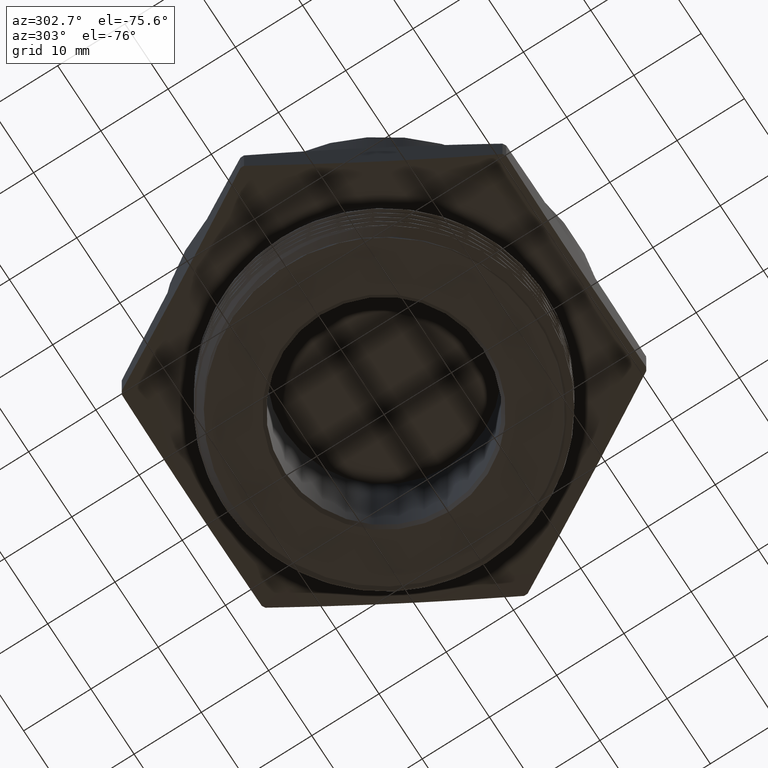
[diagram: clean part render]
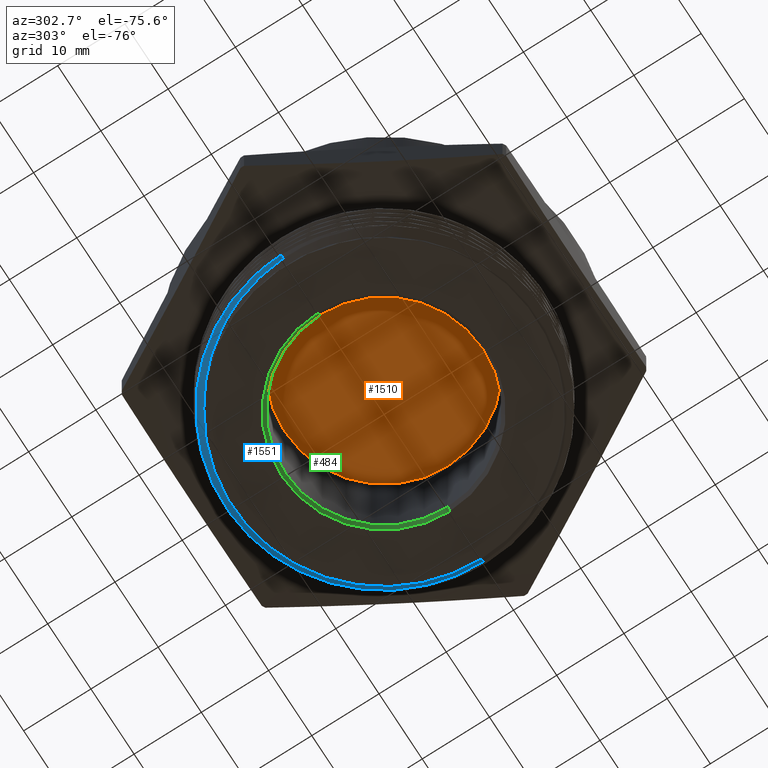
[diagram: same view with three faces highlighted in distinct colors, each labeled with its STEP entity id]
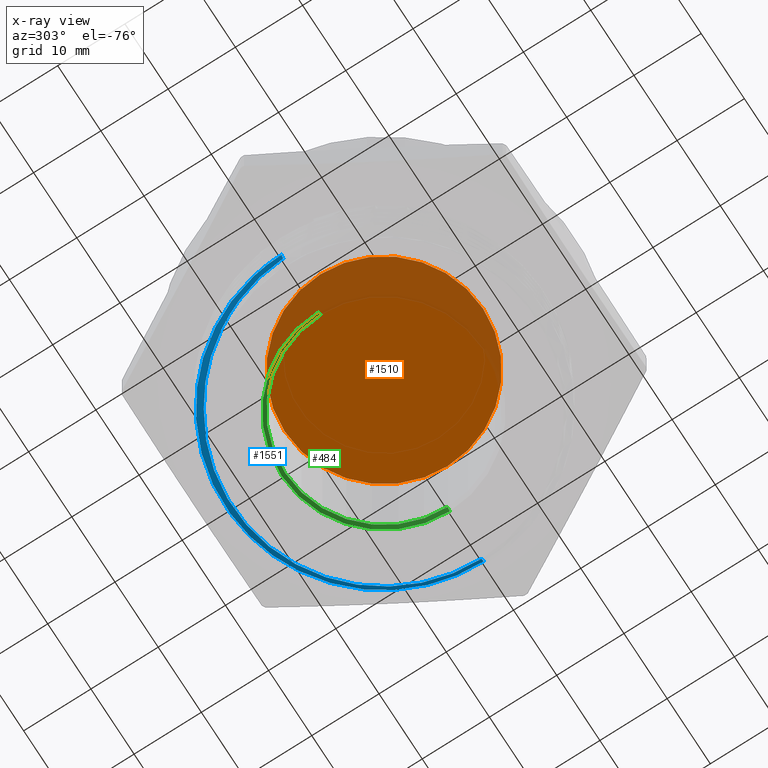
[diagram: x-ray of the same camera — body ghosted, the three highlighted faces saturated]
A machine part, auxiliary view with three faces highlighted in distinct colors.
The next image is the same camera in x-ray (body ghosted, the three faces saturated) — at least one of them is partly hidden behind the body in this view.
Their STEP definitions:

[orange] entity #1510 — the highlighted planar face has unit normal (0, 0, -1).
#23 = VERTEX_POINT ( 'NONE', #2793 ) ;
#71 = VERTEX_POINT ( 'NONE', #2736 ) ;
#80 = FACE_OUTER_BOUND ( 'NONE', #187, .T. ) ;
#187 = EDGE_LOOP ( 'NONE', ( #439, #368 ) ) ;
#215 = CIRCLE ( 'NONE', #707, 0.5800000000000002900 ) ;
#231 = CIRCLE ( 'NONE', #709, 0.5800000000000002900 ) ;
#368 = ORIENTED_EDGE ( 'NONE', *, *, #619, .T. ) ;
#439 = ORIENTED_EDGE ( 'NONE', *, *, #622, .T. ) ;
#619 = EDGE_CURVE ( 'NONE', #71, #23, #215, .T. ) ;
#622 = EDGE_CURVE ( 'NONE', #23, #71, #231, .T. ) ;
#707 = AXIS2_PLACEMENT_3D ( 'NONE', #2044, #2045, #2046 ) ;
#709 = AXIS2_PLACEMENT_3D ( 'NONE', #2052, #2053, #2054 ) ;
#720 = AXIS2_PLACEMENT_3D ( 'NONE', #1408, #1412, #1413 ) ;
#1408 = CARTESIAN_POINT ( 'NONE',  ( 0.0000000000000000000, 0.0000000000000000000, 0.2460000000000000200 ) ) ;
#1410 = PLANE ( 'NONE',  #720 ) ;
#1412 = DIRECTION ( 'NONE',  ( 0.0000000000000000000, 0.0000000000000000000, -1.000000000000000000 ) ) ;
#1413 = DIRECTION ( 'NONE',  ( -1.000000000000000000, 0.0000000000000000000, -0.0000000000000000000 ) ) ;
#1510 = ADVANCED_FACE ( 'NONE', ( #80 ), #1410, .T. ) ;
#2044 = CARTESIAN_POINT ( 'NONE',  ( 0.0000000000000000000, 0.0000000000000000000, 0.2460000000000000200 ) ) ;
#2045 = DIRECTION ( 'NONE',  ( 0.0000000000000000000, 0.0000000000000000000, -1.000000000000000000 ) ) ;
#2046 = DIRECTION ( 'NONE',  ( -1.000000000000000000, 0.0000000000000000000, 0.0000000000000000000 ) ) ;
#2052 = CARTESIAN_POINT ( 'NONE',  ( 0.0000000000000000000, 0.0000000000000000000, 0.2460000000000000200 ) ) ;
#2053 = DIRECTION ( 'NONE',  ( 0.0000000000000000000, 0.0000000000000000000, -1.000000000000000000 ) ) ;
#2054 = DIRECTION ( 'NONE',  ( -1.000000000000000000, 0.0000000000000000000, 0.0000000000000000000 ) ) ;
#2736 = CARTESIAN_POINT ( 'NONE',  ( -0.5800000000000002900, 7.102951435054652600E-017, 0.2460000000000000200 ) ) ;
#2793 = CARTESIAN_POINT ( 'NONE',  ( 0.5800000000000002900, 0.0000000000000000000, 0.2460000000000000200 ) ) ;

[blue] entity #1551 — the highlighted conical surface has half-angle 45 deg.
#75 = LINE ( 'NONE', #2070, #76 ) ;
#76 = VECTOR ( 'NONE', #2079, 39.37007874015748100 ) ;
#77 = CIRCLE ( 'NONE', #716, 0.8879000000000000200 ) ;
#78 = LINE ( 'NONE', #2188, #79 ) ;
#79 = VECTOR ( 'NONE', #2189, 39.37007874015748100 ) ;
#170 = ORIENTED_EDGE ( 'NONE', *, *, #634, .T. ) ;
#171 = ORIENTED_EDGE ( 'NONE', *, *, #638, .F. ) ;
#172 = ORIENTED_EDGE ( 'NONE', *, *, #636, .F. ) ;
#508 = B_SPLINE_CURVE_WITH_KNOTS ( 'NONE', 3,
 ( #2130, #2131, #2136, #2137, #2138, #2139, #2140, #2141, #2142, #2143, #2144, #2145, #2146, #2147, #2148, #2149, #2150, #2151, #2152, #2153, #2154, #2155, #2156, #2157, #2158, #2159, #2160, #2161, #2162, #2163, #2164, #2165, #2166, #2167, #2168, #2169, #2170, #2171, #2172, #2173, #2174, #2175, #2176, #2177, #2178, #2179, #2180, #2181, #2182, #2183, #2184, #2185, #2186, #2187 ),
 .UNSPECIFIED., .F., .F.,
 ( 4, 2, 2, 2, 2, 2, 2, 2, 2, 2, 2, 2, 2, 2, 2, 2, 2, 2, 2, 2, 2, 2, 2, 2, 2, 2, 4 ),
 ( 0.05870851475547901600, 0.06334373314206188900, 0.06450253773870760800, 0.06566134233535332600, 0.06797895152864476300, 0.07261416991522763600, 0.07493177910851907300, 0.07724938830181050900, 0.08188460668839336900, 0.08420221588168480500, 0.08536102047833052400, 0.08651982507497624200, 0.09115504346155911500, 0.09347265265485055200, 0.09579026184814197500, 0.1004254802347248300, 0.1050606986213077100, 0.1073783078145991400, 0.1096959170078905700, 0.1143311353944734400, 0.1166487445877648800, 0.1189663537810563300, 0.1236015721676392000, 0.1259191813609306400, 0.1282367905542220700, 0.1305543997475135100, 0.1328720089408049500 ),
 .UNSPECIFIED. ) ;
#509 = B_SPLINE_CURVE_WITH_KNOTS ( 'NONE', 3,
 ( #2126, #2135, #2191, #2192, #2193, #2194, #2195, #2196, #2197, #2198, #2199, #2200, #2201, #2202, #2203, #2204, #2205, #2206, #2207, #2208 ),
 .UNSPECIFIED., .F., .F.,
 ( 4, 2, 2, 2, 2, 2, 2, 2, 2, 4 ),
 ( 0.01417356054870992800, 0.01701199045015215300, 0.01843120540087326400, 0.01985042035159437600, 0.02552728015447883200, 0.02836571005592105500, 0.03120413995736327800, 0.03404256985880550100, 0.03546178480952661600, 0.03688099976024772400 ),
 .UNSPECIFIED. ) ;
#525 = EDGE_LOOP ( 'NONE', ( #171, #170, #172, #2563, #2562 ) ) ;
#539 = VERTEX_POINT ( 'NONE', #3422 ) ;
#547 = VERTEX_POINT ( 'NONE', #3428 ) ;
#558 = VERTEX_POINT ( 'NONE', #3439 ) ;
#564 = VERTEX_POINT ( 'NONE', #3445 ) ;
#580 = VERTEX_POINT ( 'NONE', #1889 ) ;
#634 = EDGE_CURVE ( 'NONE', #580, #558, #75, .T. ) ;
#635 = EDGE_CURVE ( 'NONE', #564, #539, #77, .T. ) ;
#636 = EDGE_CURVE ( 'NONE', #547, #558, #508, .T. ) ;
#637 = EDGE_CURVE ( 'NONE', #564, #547, #78, .T. ) ;
#638 = EDGE_CURVE ( 'NONE', #580, #539, #509, .T. ) ;
#716 = AXIS2_PLACEMENT_3D ( 'NONE', #2132, #2133, #2134 ) ;
#761 = AXIS2_PLACEMENT_3D ( 'NONE', #1839, #1840, #1838 ) ;
#834 = FACE_OUTER_BOUND ( 'NONE', #525, .T. ) ;
#854 = CONICAL_SURFACE ( 'NONE', #761, 0.8879000000000000200, 0.7853981633974606000 ) ;
#1551 = ADVANCED_FACE ( 'NONE', ( #834 ), #854, .T. ) ;
#1838 = DIRECTION ( 'NONE',  ( 1.000000000000000000, 0.0000000000000000000, 0.0000000000000000000 ) ) ;
#1839 = CARTESIAN_POINT ( 'NONE',  ( 0.0000000000000000000, 0.0000000000000000000, -0.5799999999999999600 ) ) ;
#1840 = DIRECTION ( 'NONE',  ( -0.0000000000000000000, -0.0000000000000000000, 1.000000000000000000 ) ) ;
#1889 = CARTESIAN_POINT ( 'NONE',  ( -0.9187295335685363700, -1.901779666564770700E-015, -0.5491704664314647200 ) ) ;
#2070 = CARTESIAN_POINT ( 'NONE',  ( -0.8879000000000000200, 1.087363892962934900E-016, -0.5799999999999999600 ) ) ;
#2079 = DIRECTION ( 'NONE',  ( -0.7071067811865562300, 8.659560562355040100E-017, 0.7071067811865388000 ) ) ;
#2126 = CARTESIAN_POINT ( 'NONE',  ( -0.9187295335685363700, -1.901779666564770700E-015, -0.5491704664314647200 ) ) ;
#2130 = CARTESIAN_POINT ( 'NONE',  ( 0.9093685527105362900, -5.572423057581846600E-013, -0.5585314472894641300 ) ) ;
#2131 = CARTESIAN_POINT ( 'NONE',  ( 0.9099086222116182800, 0.06040943416530654400, -0.5579913777884197800 ) ) ;
#2132 = CARTESIAN_POINT ( 'NONE',  ( 0.0000000000000000000, 0.0000000000000000000, -0.5799999999999999600 ) ) ;
#2133 = DIRECTION ( 'NONE',  ( -0.0000000000000000000, -0.0000000000000000000, 1.000000000000000000 ) ) ;
#2134 = DIRECTION ( 'NONE',  ( 1.000000000000000000, 0.0000000000000000000, 0.0000000000000000000 ) ) ;
#2135 = CARTESIAN_POINT ( 'NONE',  ( -0.9175150236275178000, 0.03677531384875076800, -0.5503849763724829600 ) ) ;
#2136 = CARTESIAN_POINT ( 'NONE',  ( 0.9044993276383493900, 0.1202570559764523600, -0.5574399792739865900 ) ) ;
#2137 = CARTESIAN_POINT ( 'NONE',  ( 0.8903190498961892600, 0.1943660233108025800, -0.5567367585147899900 ) ) ;
#2138 = CARTESIAN_POINT ( 'NONE',  ( 0.8871086508765676500, 0.2091524667157284300, -0.5565954087561749700 ) ) ;
#2139 = CARTESIAN_POINT ( 'NONE',  ( 0.8799255813774464800, 0.2386533706014236600, -0.5563112740437087300 ) ) ;
#2140 = CARTESIAN_POINT ( 'NONE',  ( 0.8759435070030473500, 0.2533928935422469200, -0.5561682386955462100 ) ) ;
#2141 = CARTESIAN_POINT ( 'NONE',  ( 0.8629775320193430200, 0.2970242811542688800, -0.5557416152790924900 ) ) ;
#2142 = CARTESIAN_POINT ( 'NONE',  ( 0.8529467788730701300, 0.3254753019017321800, -0.5554591241540809400 ) ) ;
#2143 = CARTESIAN_POINT ( 'NONE',  ( 0.8188068839175795000, 0.4089703719520047500, -0.5546172579144097400 ) ) ;
#2144 = CARTESIAN_POINT ( 'NONE',  ( 0.7906900942645450600, 0.4621747847440964000, -0.5540634423732918600 ) ) ;
#2145 = CARTESIAN_POINT ( 'NONE',  ( 0.7402015555132420700, 0.5381653107898064500, -0.5532440707948491600 ) ) ;
#2146 = CARTESIAN_POINT ( 'NONE',  ( 0.7220859500482178500, 0.5626743536389005000, -0.5529746821985289700 ) ) ;
#2147 = CARTESIAN_POINT ( 'NONE',  ( 0.6836079593988116900, 0.6096699720363715200, -0.5524246553782191600 ) ) ;
#2148 = CARTESIAN_POINT ( 'NONE',  ( 0.6631210257276978200, 0.6322970705615162900, -0.5521452321565506500 ) ) ;
#2149 = CARTESIAN_POINT ( 'NONE',  ( 0.5986871563825882900, 0.6967140871972746800, -0.5513042935855899700 ) ) ;
#2150 = CARTESIAN_POINT ( 'NONE',  ( 0.5521303905111253400, 0.7348107622408015500, -0.5507441045270956600 ) ) ;
#2151 = CARTESIAN_POINT ( 'NONE',  ( 0.4770453251760926100, 0.7848875585452678200, -0.5499044935436927500 ) ) ;
#2152 = CARTESIAN_POINT ( 'NONE',  ( 0.4511355972988103100, 0.8003931892146710600, -0.5496247342603998200 ) ) ;
#2153 = CARTESIAN_POINT ( 'NONE',  ( 0.4109089824390574400, 0.8218178775509313900, -0.5492052544474553800 ) ) ;
#2154 = CARTESIAN_POINT ( 'NONE',  ( 0.3972641773217527900, 0.8286544002915105000, -0.5490653845133171000 ) ) ;
#2155 = CARTESIAN_POINT ( 'NONE',  ( 0.3698226638521691600, 0.8415619248322802100, -0.5487888070874802300 ) ) ;
#2156 = CARTESIAN_POINT ( 'NONE',  ( 0.3559888031217147100, 0.8476536687698227300, -0.5486517068155881700 ) ) ;
#2157 = CARTESIAN_POINT ( 'NONE',  ( 0.2862633495387587000, 0.8763322877109751600, -0.5479720386347345400 ) ) ;
#2158 = CARTESIAN_POINT ( 'NONE',  ( 0.2287190496781834900, 0.8936292684415679800, -0.5474474338153840800 ) ) ;
#2159 = CARTESIAN_POINT ( 'NONE',  ( 0.1397611674719178000, 0.9111180899503331700, -0.5466203621366957400 ) ) ;
#2160 = CARTESIAN_POINT ( 'NONE',  ( 0.1094996794478989000, 0.9155334383257183200, -0.5463392627801190200 ) ) ;
#2161 = CARTESIAN_POINT ( 'NONE',  ( 0.04919333787316582100, 0.9213053376959180500, -0.5457795926498325600 ) ) ;
#2162 = CARTESIAN_POINT ( 'NONE',  ( 0.01909019663683116100, 0.9226915154822995500, -0.5455004768921583000 ) ) ;
#2163 = CARTESIAN_POINT ( 'NONE',  ( -0.07107262787746516900, 0.9224553374391812900, -0.5446652435490100300 ) ) ;
#2164 = CARTESIAN_POINT ( 'NONE',  ( -0.1309871479307233900, 0.9164813152582135200, -0.5441112266588971100 ) ) ;
#2165 = CARTESIAN_POINT ( 'NONE',  ( -0.2504123671815989800, 0.8924276728257762900, -0.5430088883153153500 ) ) ;
#2166 = CARTESIAN_POINT ( 'NONE',  ( -0.3080407469370408700, 0.8747062052410139500, -0.5424874238262176200 ) ) ;
#2167 = CARTESIAN_POINT ( 'NONE',  ( -0.3912666507997307200, 0.8400618394757761700, -0.5416761699289722700 ) ) ;
#2168 = CARTESIAN_POINT ( 'NONE',  ( -0.4184820900872560600, 0.8271554914529566400, -0.5414025444817810500 ) ) ;
#2169 = CARTESIAN_POINT ( 'NONE',  ( -0.4718370264734668700, 0.7985673091398016700, -0.5408487635004949300 ) ) ;
#2170 = CARTESIAN_POINT ( 'NONE',  ( -0.4980596719304260500, 0.7828131035805188100, -0.5405675981610093000 ) ) ;
#2171 = CARTESIAN_POINT ( 'NONE',  ( -0.5734422846039760600, 0.7323370105603962400, -0.5397319564609954800 ) ) ;
#2172 = CARTESIAN_POINT ( 'NONE',  ( -0.6198712287126309000, 0.6941984213357943500, -0.5391800829050306100 ) ) ;
#2173 = CARTESIAN_POINT ( 'NONE',  ( -0.6838378199221301100, 0.6303319063420940200, -0.5383599523860057600 ) ) ;
#2174 = CARTESIAN_POINT ( 'NONE',  ( -0.7042542641943677600, 0.6078679957954061800, -0.5380872041525153200 ) ) ;
#2175 = CARTESIAN_POINT ( 'NONE',  ( -0.7429072875265815300, 0.5608661880793406300, -0.5375471716793698300 ) ) ;
#2176 = CARTESIAN_POINT ( 'NONE',  ( -0.7609259722087962100, 0.5366016913414958200, -0.5372852004498456200 ) ) ;
#2177 = CARTESIAN_POINT ( 'NONE',  ( -0.8112164826610529500, 0.4616100209703142800, -0.5364856064895352500 ) ) ;
#2178 = CARTESIAN_POINT ( 'NONE',  ( -0.8397506176492763900, 0.4087008457802128700, -0.5359421461504586500 ) ) ;
#2179 = CARTESIAN_POINT ( 'NONE',  ( -0.8749105154703438200, 0.3248762568366487800, -0.5351111801812896700 ) ) ;
#2180 = CARTESIAN_POINT ( 'NONE',  ( -0.8853416064888264300, 0.2961421851007556800, -0.5348311815631222600 ) ) ;
#2181 = CARTESIAN_POINT ( 'NONE',  ( -0.9031728073933117400, 0.2384144583669123300, -0.5342779994366938500 ) ) ;
#2182 = CARTESIAN_POINT ( 'NONE',  ( -0.9106434610754579100, 0.2092694308249355700, -0.5340032942286636600 ) ) ;
#2183 = CARTESIAN_POINT ( 'NONE',  ( -0.9227440702182960800, 0.1504266201398012400, -0.5334575799745691100 ) ) ;
#2184 = CARTESIAN_POINT ( 'NONE',  ( -0.9273739840828222300, 0.1207288289024965200, -0.5331865710026029200 ) ) ;
#2185 = CARTESIAN_POINT ( 'NONE',  ( -0.9337617696085972500, 0.06077439200322499300, -0.5326482654535208400 ) ) ;
#2186 = CARTESIAN_POINT ( 'NONE',  ( -0.9355198881347286400, 0.03041888284899506000, -0.5323801118652724500 ) ) ;
#2187 = CARTESIAN_POINT ( 'NONE',  ( -0.9357841608861902100, 3.102454404123152100E-016, -0.5321158391138107700 ) ) ;
#2188 = CARTESIAN_POINT ( 'NONE',  ( 0.8879000000000000200, 0.0000000000000000000, -0.5799999999999999600 ) ) ;
#2189 = DIRECTION ( 'NONE',  ( 0.7071067811865562300, 0.0000000000000000000, 0.7071067811865388000 ) ) ;
#2191 = CARTESIAN_POINT ( 'NONE',  ( -0.9140774688331428900, 0.07339031345618599000, -0.5516226109006160400 ) ) ;
#2192 = CARTESIAN_POINT ( 'NONE',  ( -0.9055595574547994400, 0.1280703666037249500, -0.5535148212820600900 ) ) ;
#2193 = CARTESIAN_POINT ( 'NONE',  ( -0.9021584724602407200, 0.1462565338929134900, -0.5541515310578142300 ) ) ;
#2194 = CARTESIAN_POINT ( 'NONE',  ( -0.8942090419618747800, 0.1825461218186079100, -0.5554372453226302800 ) ) ;
#2195 = CARTESIAN_POINT ( 'NONE',  ( -0.8896464251316417200, 0.2006865940735780600, -0.5560876432716733700 ) ) ;
#2196 = CARTESIAN_POINT ( 'NONE',  ( -0.8642563640512842500, 0.2899516979919882800, -0.5593266680970434600 ) ) ;
#2197 = CARTESIAN_POINT ( 'NONE',  ( -0.8356554935975246700, 0.3577233867574425900, -0.5619084778838395700 ) ) ;
#2198 = CARTESIAN_POINT ( 'NONE',  ( -0.7804567481899783400, 0.4539799814961906800, -0.5657668681519834000 ) ) ;
#2199 = CARTESIAN_POINT ( 'NONE',  ( -0.7598394038822168200, 0.4853131501336865300, -0.5670575658883519900 ) ) ;
#2200 = CARTESIAN_POINT ( 'NONE',  ( -0.7154448046845338600, 0.5445258721035076700, -0.5695670930820740900 ) ) ;
#2201 = CARTESIAN_POINT ( 'NONE',  ( -0.6915804259803483000, 0.5725631351047616400, -0.5708150810206771300 ) ) ;
#2202 = CARTESIAN_POINT ( 'NONE',  ( -0.6405246641494284400, 0.6255024719041575300, -0.5733752600839178100 ) ) ;
#2203 = CARTESIAN_POINT ( 'NONE',  ( -0.6133418049327998800, 0.6504131322746118400, -0.5746757297895064300 ) ) ;
#2204 = CARTESIAN_POINT ( 'NONE',  ( -0.5700150038227740400, 0.6853745996148978800, -0.5766584544438856400 ) ) ;
#2205 = CARTESIAN_POINT ( 'NONE',  ( -0.5551128178556140600, 0.6966482411480160500, -0.5773261367346376200 ) ) ;
#2206 = CARTESIAN_POINT ( 'NONE',  ( -0.5246775086723518600, 0.7181959068159848900, -0.5786617629886643400 ) ) ;
#2207 = CARTESIAN_POINT ( 'NONE',  ( -0.5091296965418872200, 0.7284851438941938300, -0.5793304429776579000 ) ) ;
#2208 = CARTESIAN_POINT ( 'NONE',  ( -0.4932508827209466900, 0.7382885456886126900, -0.5800000000000000700 ) ) ;
#2562 = ORIENTED_EDGE ( 'NONE', *, *, #635, .T. ) ;
#2563 = ORIENTED_EDGE ( 'NONE', *, *, #637, .F. ) ;
#3422 = CARTESIAN_POINT ( 'NONE',  ( -0.4932508827209466900, 0.7382885456886126900, -0.5800000000000000700 ) ) ;
#3428 = CARTESIAN_POINT ( 'NONE',  ( 0.9093685527105362900, -5.572423057581846600E-013, -0.5585314472894641300 ) ) ;
#3439 = CARTESIAN_POINT ( 'NONE',  ( -0.9357841608861902100, 3.102454404123152100E-016, -0.5321158391138107700 ) ) ;
#3445 = CARTESIAN_POINT ( 'NONE',  ( 0.8879000000000000200, 0.0000000000000000000, -0.5799999999999999600 ) ) ;

[green] entity #484 — the highlighted conical surface has half-angle 45 deg.
#191 = EDGE_LOOP ( 'NONE', ( #2567, #2568, #2569, #2570 ) ) ;
#211 = FACE_OUTER_BOUND ( 'NONE', #191, .T. ) ;
#218 = CONICAL_SURFACE ( 'NONE', #694, 0.5799999999999999600, 0.7853981633974586000 ) ;
#245 = EDGE_CURVE ( 'NONE', #543, #567, #584, .T. ) ;
#247 = EDGE_CURVE ( 'NONE', #574, #555, #1735, .T. ) ;
#363 = EDGE_CURVE ( 'NONE', #567, #555, #817, .T. ) ;
#364 = EDGE_CURVE ( 'NONE', #543, #574, #820, .T. ) ;
#484 = ADVANCED_FACE ( 'NONE', ( #211 ), #218, .F. ) ;
#543 = VERTEX_POINT ( 'NONE', #3424 ) ;
#555 = VERTEX_POINT ( 'NONE', #3436 ) ;
#567 = VERTEX_POINT ( 'NONE', #3448 ) ;
#574 = VERTEX_POINT ( 'NONE', #1883 ) ;
#584 = LINE ( 'NONE', #2725, #585 ) ;
#585 = VECTOR ( 'NONE', #2728, 39.37007874015748100 ) ;
#683 = AXIS2_PLACEMENT_3D ( 'NONE', #3251, #3252, #3253 ) ;
#684 = AXIS2_PLACEMENT_3D ( 'NONE', #3255, #3256, #3257 ) ;
#694 = AXIS2_PLACEMENT_3D ( 'NONE', #3401, #3393, #3399 ) ;
#817 = CIRCLE ( 'NONE', #683, 0.6000000000000002000 ) ;
#820 = CIRCLE ( 'NONE', #684, 0.5799999999999999600 ) ;
#1735 = LINE ( 'NONE', #2703, #1736 ) ;
#1736 = VECTOR ( 'NONE', #2718, 39.37007874015748100 ) ;
#1883 = CARTESIAN_POINT ( 'NONE',  ( -0.5799999999999999600, 0.0000000000000000000, -0.5600000000000000500 ) ) ;
#2567 = ORIENTED_EDGE ( 'NONE', *, *, #245, .F. ) ;
#2568 = ORIENTED_EDGE ( 'NONE', *, *, #364, .T. ) ;
#2569 = ORIENTED_EDGE ( 'NONE', *, *, #247, .T. ) ;
#2570 = ORIENTED_EDGE ( 'NONE', *, *, #363, .F. ) ;
#2703 = CARTESIAN_POINT ( 'NONE',  ( -0.5799999999999999600, 0.0000000000000000000, -0.5600000000000000500 ) ) ;
#2718 = DIRECTION ( 'NONE',  ( -0.7071067811865547900, 0.0000000000000000000, -0.7071067811865402500 ) ) ;
#2725 = CARTESIAN_POINT ( 'NONE',  ( 0.5799999999999999600, 7.102951435054647700E-017, -0.5600000000000000500 ) ) ;
#2728 = DIRECTION ( 'NONE',  ( 0.7071067811865547900, 8.659560562355021600E-017, -0.7071067811865402500 ) ) ;
#3251 = CARTESIAN_POINT ( 'NONE',  ( 0.0000000000000000000, 0.0000000000000000000, -0.5799999999999998500 ) ) ;
#3252 = DIRECTION ( 'NONE',  ( -0.0000000000000000000, -0.0000000000000000000, 1.000000000000000000 ) ) ;
#3253 = DIRECTION ( 'NONE',  ( 1.000000000000000000, 0.0000000000000000000, 0.0000000000000000000 ) ) ;
#3255 = CARTESIAN_POINT ( 'NONE',  ( 0.0000000000000000000, 0.0000000000000000000, -0.5600000000000000500 ) ) ;
#3256 = DIRECTION ( 'NONE',  ( -0.0000000000000000000, -0.0000000000000000000, 1.000000000000000000 ) ) ;
#3257 = DIRECTION ( 'NONE',  ( 1.000000000000000000, 0.0000000000000000000, 0.0000000000000000000 ) ) ;
#3393 = DIRECTION ( 'NONE',  ( 0.0000000000000000000, 0.0000000000000000000, -1.000000000000000000 ) ) ;
#3399 = DIRECTION ( 'NONE',  ( -1.000000000000000000, 0.0000000000000000000, 0.0000000000000000000 ) ) ;
#3401 = CARTESIAN_POINT ( 'NONE',  ( 0.0000000000000000000, 0.0000000000000000000, -0.5600000000000000500 ) ) ;
#3424 = CARTESIAN_POINT ( 'NONE',  ( 0.5799999999999999600, 7.225416114969385200E-017, -0.5600000000000000500 ) ) ;
#3436 = CARTESIAN_POINT ( 'NONE',  ( -0.6000000000000002000, 0.0000000000000000000, -0.5799999999999998500 ) ) ;
#3448 = CARTESIAN_POINT ( 'NONE',  ( 0.6000000000000002000, 7.347880794884121500E-017, -0.5799999999999998500 ) ) ;